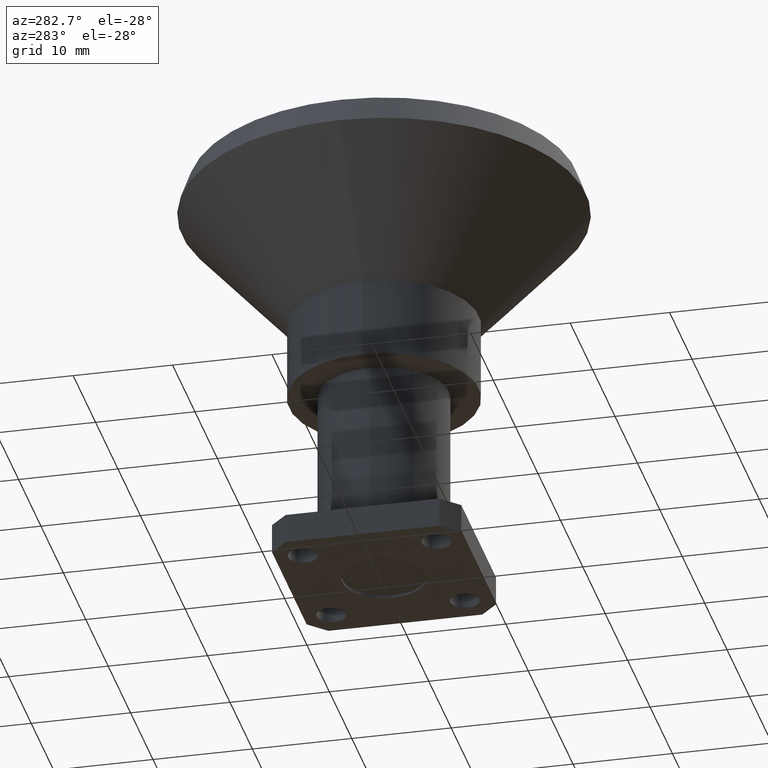
[diagram: clean part render]
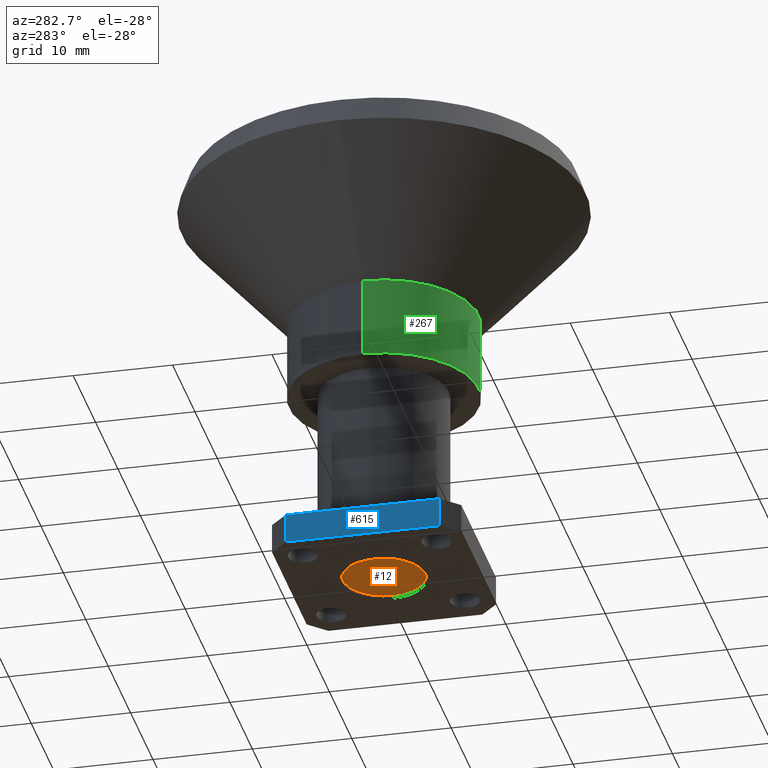
[diagram: same view with three faces highlighted in distinct colors, each labeled with its STEP entity id]
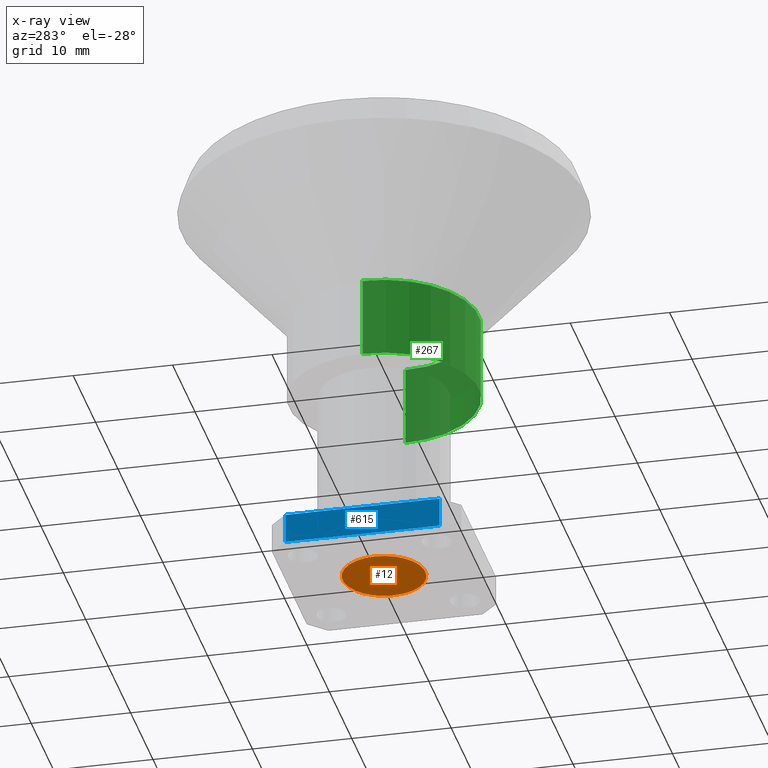
[diagram: x-ray of the same camera — body ghosted, the three highlighted faces saturated]
A machine part, auxiliary view with three faces highlighted in distinct colors.
The next image is the same camera in x-ray (body ghosted, the three faces saturated) — at least one of them is partly hidden behind the body in this view.
Their STEP definitions:

[orange] entity #12 — the highlighted planar face has unit normal (-0, 0, -1).
#6 = ORIENTED_EDGE ( 'NONE', *, *, #310, .T. ) ;
#12 = ADVANCED_FACE ( 'NONE', ( #733 ), #797, .T. ) ;
#29 = DIRECTION ( 'NONE',  ( -1.000000000000000000, 0.0000000000000000000, 0.0000000000000000000 ) ) ;
#57 = ORIENTED_EDGE ( 'NONE', *, *, #719, .T. ) ;
#105 = CARTESIAN_POINT ( 'NONE',  ( 0.1639999999647116000, 0.0000000000000000000, -1.689999999996315800 ) ) ;
#143 = AXIS2_PLACEMENT_3D ( 'NONE', #146, #703, #316 ) ;
#146 = CARTESIAN_POINT ( 'NONE',  ( 0.2579999999647116200, 0.0000000000000000000, -1.689999999996315800 ) ) ;
#179 = EDGE_LOOP ( 'NONE', ( #57, #6 ) ) ;
#257 = VERTEX_POINT ( 'NONE', #105 ) ;
#284 = DIRECTION ( 'NONE',  ( -1.224646799147353200E-016, -0.0000000000000000000, -1.000000000000000000 ) ) ;
#310 = EDGE_CURVE ( 'NONE', #1029, #257, #620, .T. ) ;
#316 = DIRECTION ( 'NONE',  ( -1.000000000000000000, 0.0000000000000000000, 1.224646799147353200E-016 ) ) ;
#475 = CARTESIAN_POINT ( 'NONE',  ( 1.347111479513268700E-018, 0.0000000000000000000, -1.689999999996315800 ) ) ;
#563 = CIRCLE ( 'NONE', #612, 0.1639999999647116000 ) ;
#612 = AXIS2_PLACEMENT_3D ( 'NONE', #475, #963, #1033 ) ;
#620 = CIRCLE ( 'NONE', #625, 0.1639999999647116000 ) ;
#625 = AXIS2_PLACEMENT_3D ( 'NONE', #658, #284, #29 ) ;
#658 = CARTESIAN_POINT ( 'NONE',  ( 1.347111479513268700E-018, 0.0000000000000000000, -1.689999999996315800 ) ) ;
#703 = DIRECTION ( 'NONE',  ( -1.224646799147353200E-016, 0.0000000000000000000, -1.000000000000000000 ) ) ;
#719 = EDGE_CURVE ( 'NONE', #257, #1029, #563, .T. ) ;
#733 = FACE_OUTER_BOUND ( 'NONE', #179, .T. ) ;
#797 = PLANE ( 'NONE',  #143 ) ;
#946 = CARTESIAN_POINT ( 'NONE',  ( -0.1639999999647116000, 2.008420750169501100E-017, -1.689999999996315800 ) ) ;
#963 = DIRECTION ( 'NONE',  ( -1.224646799147353200E-016, -0.0000000000000000000, -1.000000000000000000 ) ) ;
#1029 = VERTEX_POINT ( 'NONE', #946 ) ;
#1033 = DIRECTION ( 'NONE',  ( -1.000000000000000000, 0.0000000000000000000, 0.0000000000000000000 ) ) ;

[blue] entity #615 — the highlighted planar face has unit normal (-1, 0, 0).
#30 = ORIENTED_EDGE ( 'NONE', *, *, #171, .T. ) ;
#51 = EDGE_LOOP ( 'NONE', ( #256, #30, #555, #265 ) ) ;
#68 = DIRECTION ( 'NONE',  ( -1.000000000000000000, 9.106159978880877400E-017, 1.224646799147353200E-016 ) ) ;
#96 = VECTOR ( 'NONE', #804, 39.37007874015748100 ) ;
#110 = VECTOR ( 'NONE', #567, 39.37007874015748100 ) ;
#129 = VECTOR ( 'NONE', #767, 39.37007874015748100 ) ;
#142 = LINE ( 'NONE', #1054, #110 ) ;
#158 = CARTESIAN_POINT ( 'NONE',  ( -0.3750000000000002200, 0.3749999999999998900, -1.581999999996315700 ) ) ;
#170 = VERTEX_POINT ( 'NONE', #1046 ) ;
#171 = EDGE_CURVE ( 'NONE', #879, #657, #142, .T. ) ;
#178 = EDGE_CURVE ( 'NONE', #858, #170, #461, .T. ) ;
#209 = LINE ( 'NONE', #966, #96 ) ;
#256 = ORIENTED_EDGE ( 'NONE', *, *, #651, .F. ) ;
#265 = ORIENTED_EDGE ( 'NONE', *, *, #178, .T. ) ;
#275 = FACE_OUTER_BOUND ( 'NONE', #51, .T. ) ;
#301 = LINE ( 'NONE', #599, #129 ) ;
#364 = EDGE_CURVE ( 'NONE', #657, #858, #301, .T. ) ;
#400 = VECTOR ( 'NONE', #833, 39.37007874015748100 ) ;
#405 = PLANE ( 'NONE',  #632 ) ;
#461 = LINE ( 'NONE', #509, #400 ) ;
#479 = CARTESIAN_POINT ( 'NONE',  ( -0.3750000000000002800, -0.3049999999999992700, -1.581999999996315700 ) ) ;
#493 = CARTESIAN_POINT ( 'NONE',  ( -0.3750000000000002200, 0.3050000000000001000, -1.581999999996315700 ) ) ;
#509 = CARTESIAN_POINT ( 'NONE',  ( -0.3750000000000002200, 0.3050000000000001000, -1.581999999996315700 ) ) ;
#555 = ORIENTED_EDGE ( 'NONE', *, *, #364, .T. ) ;
#567 = DIRECTION ( 'NONE',  ( 1.224646799147353200E-016, 0.0000000000000000000, 1.000000000000000000 ) ) ;
#599 = CARTESIAN_POINT ( 'NONE',  ( -0.3750000000000002200, 0.3749999999999998900, -1.581999999996315700 ) ) ;
#615 = ADVANCED_FACE ( 'NONE', ( #275 ), #405, .T. ) ;
#632 = AXIS2_PLACEMENT_3D ( 'NONE', #158, #68, #717 ) ;
#651 = EDGE_CURVE ( 'NONE', #879, #170, #209, .T. ) ;
#657 = VERTEX_POINT ( 'NONE', #479 ) ;
#717 = DIRECTION ( 'NONE',  ( 1.224646799147353200E-016, 0.0000000000000000000, 1.000000000000000000 ) ) ;
#767 = DIRECTION ( 'NONE',  ( 9.106159978880878600E-017, 1.000000000000000000, -0.0000000000000000000 ) ) ;
#804 = DIRECTION ( 'NONE',  ( 9.106159978880878600E-017, 1.000000000000000000, -0.0000000000000000000 ) ) ;
#833 = DIRECTION ( 'NONE',  ( -1.224646799147353200E-016, 0.0000000000000000000, -1.000000000000000000 ) ) ;
#858 = VERTEX_POINT ( 'NONE', #493 ) ;
#879 = VERTEX_POINT ( 'NONE', #974 ) ;
#966 = CARTESIAN_POINT ( 'NONE',  ( -0.3750000000000002200, 0.3749999999999998900, -1.699999999996315800 ) ) ;
#974 = CARTESIAN_POINT ( 'NONE',  ( -0.3750000000000002800, -0.3049999999999992700, -1.699999999996315800 ) ) ;
#1046 = CARTESIAN_POINT ( 'NONE',  ( -0.3750000000000002200, 0.3050000000000001000, -1.699999999996315800 ) ) ;
#1054 = CARTESIAN_POINT ( 'NONE',  ( -0.3750000000000002800, -0.3049999999999995500, -1.581999999996315700 ) ) ;

[green] entity #267 — the highlighted cylindrical surface (partial cylindrical patch) has radius 9.5504 mm, axis along (0, 0, 1).
#55 = DIRECTION ( 'NONE',  ( 1.224646799147353200E-016, 0.0000000000000000000, 1.000000000000000000 ) ) ;
#107 = DIRECTION ( 'NONE',  ( 1.000000000000000000, 0.0000000000000000000, 0.0000000000000000000 ) ) ;
#137 = DIRECTION ( 'NONE',  ( 1.224646799147353200E-016, 0.0000000000000000000, 1.000000000000000000 ) ) ;
#149 = DIRECTION ( 'NONE',  ( 1.000000000000000000, 0.0000000000000000000, 0.0000000000000000000 ) ) ;
#184 = LINE ( 'NONE', #959, #911 ) ;
#190 = ORIENTED_EDGE ( 'NONE', *, *, #546, .F. ) ;
#192 = DIRECTION ( 'NONE',  ( 1.224646799147353200E-016, 0.0000000000000000000, 1.000000000000000000 ) ) ;
#231 = VECTOR ( 'NONE', #55, 39.37007874015748100 ) ;
#244 = CIRCLE ( 'NONE', #428, 0.3759999999647114500 ) ;
#263 = ORIENTED_EDGE ( 'NONE', *, *, #673, .T. ) ;
#267 = ADVANCED_FACE ( 'NONE', ( #759 ), #439, .T. ) ;
#332 = ORIENTED_EDGE ( 'NONE', *, *, #453, .F. ) ;
#350 = CARTESIAN_POINT ( 'NONE',  ( 0.3759999999647116200, 0.0000000000000000000, -0.5939999999963158100 ) ) ;
#428 = AXIS2_PLACEMENT_3D ( 'NONE', #782, #137, #771 ) ;
#439 = CYLINDRICAL_SURFACE ( 'NONE', #984, 0.3759999999647115100 ) ;
#453 = EDGE_CURVE ( 'NONE', #503, #813, #967, .T. ) ;
#481 = EDGE_LOOP ( 'NONE', ( #332, #507, #263, #190 ) ) ;
#503 = VERTEX_POINT ( 'NONE', #700 ) ;
#507 = ORIENTED_EDGE ( 'NONE', *, *, #663, .T. ) ;
#546 = EDGE_CURVE ( 'NONE', #813, #906, #244, .T. ) ;
#583 = CARTESIAN_POINT ( 'NONE',  ( 0.0000000000000000000, 0.0000000000000000000, -1.701000000000000100 ) ) ;
#616 = CARTESIAN_POINT ( 'NONE',  ( -0.3759999999647115100, 4.604671964361889400E-017, -1.701000000000000100 ) ) ;
#637 = CARTESIAN_POINT ( 'NONE',  ( -0.3759999999647113400, 7.197861561772489400E-017, -0.5939999999963155900 ) ) ;
#663 = EDGE_CURVE ( 'NONE', #503, #1035, #704, .T. ) ;
#673 = EDGE_CURVE ( 'NONE', #1035, #906, #184, .T. ) ;
#700 = CARTESIAN_POINT ( 'NONE',  ( -0.3759999999647114500, 4.604671964361890000E-017, -0.9129999999963157600 ) ) ;
#704 = CIRCLE ( 'NONE', #796, 0.3759999999647115100 ) ;
#706 = DIRECTION ( 'NONE',  ( 1.224646799147353200E-016, 0.0000000000000000000, 1.000000000000000000 ) ) ;
#712 = CARTESIAN_POINT ( 'NONE',  ( 9.650216777326262000E-017, 0.0000000000000000000, -0.9129999999963157600 ) ) ;
#759 = FACE_OUTER_BOUND ( 'NONE', #481, .T. ) ;
#771 = DIRECTION ( 'NONE',  ( 1.000000000000000000, 0.0000000000000000000, -1.816388293830222200E-016 ) ) ;
#782 = CARTESIAN_POINT ( 'NONE',  ( 1.355684006660631900E-016, 0.0000000000000000000, -0.5939999999963157000 ) ) ;
#790 = DIRECTION ( 'NONE',  ( 1.224646799147353200E-016, 0.0000000000000000000, 1.000000000000000000 ) ) ;
#796 = AXIS2_PLACEMENT_3D ( 'NONE', #712, #790, #149 ) ;
#813 = VERTEX_POINT ( 'NONE', #637 ) ;
#906 = VERTEX_POINT ( 'NONE', #350 ) ;
#911 = VECTOR ( 'NONE', #706, 39.37007874015748100 ) ;
#959 = CARTESIAN_POINT ( 'NONE',  ( 0.3759999999647115100, 0.0000000000000000000, -1.701000000000000100 ) ) ;
#967 = LINE ( 'NONE', #616, #231 ) ;
#984 = AXIS2_PLACEMENT_3D ( 'NONE', #583, #192, #107 ) ;
#1000 = CARTESIAN_POINT ( 'NONE',  ( 0.3759999999647116200, 0.0000000000000000000, -0.9129999999963157600 ) ) ;
#1035 = VERTEX_POINT ( 'NONE', #1000 ) ;